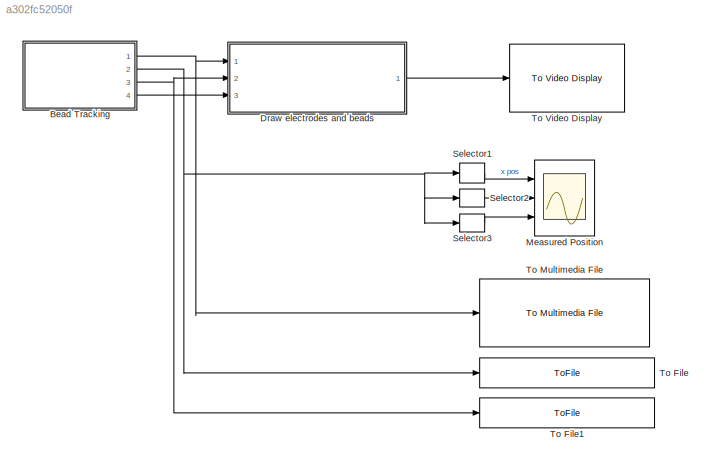
MODEL slx_a302fc52050f
KIND model
CONFIG AbsTol = auto
CONFIG FixedStep = 1/100
CONFIG InitFcn = load('calibParams.mat')
CONFIG MaxStep = auto
CONFIG MinStep = auto
CONFIG RelTol = 1e-3
CONFIG SampleTimeConstraint = Unconstrained
CONFIG Solver = FixedStepDiscrete
CONFIG SolverMode = Auto
CONFIG SolverName = FixedStepDiscrete
CONFIG StartTime = 0.0
CONFIG StopTime = inf
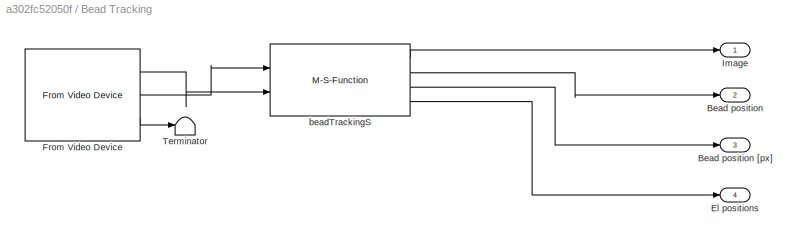
BLOCK [SubSystem] Bead Tracking
  Ports = [0, 4]
  RequestExecContextInheritance = off
  Variant = off
BLOCK [Outport] Bead Tracking/Bead position
  IconDisplay = Port number
  Port = 2
BLOCK [Outport] Bead Tracking/Bead position [px]
  IconDisplay = Port number
  Port = 3
BLOCK [Outport] Bead Tracking/El positions
  IconDisplay = Port number
  Port = 4
BLOCK [Reference] Bead Tracking/From Video Device  REF=imaqlib/From Video Device
  Ports = [0, 3]
  SourceBlock = imaqlib/From Video Device
  SourceType = From Video Device
  UserDataPersistent = on
BLOCK [Outport] Bead Tracking/Image
  IconDisplay = Port number
BLOCK [Terminator] Bead Tracking/Terminator
BLOCK [M-S-Function] Bead Tracking/beadTrackingS
  FunctionName = beadTracking
  Parameters = beadSize,maxTrackedBeads,y_offset,markBeads,calibParamsFile
  Ports = [2, 4]
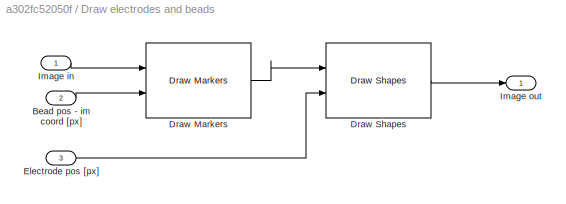
BLOCK [SubSystem] Draw electrodes and beads
  Ports = [3, 1]
  RequestExecContextInheritance = off
  Variant = off
BLOCK [Inport] Draw electrodes and beads/Bead pos - im coord [px]
  IconDisplay = Port number
  Port = 2
BLOCK [Reference] Draw electrodes and beads/Draw Markers  REF=visiontextngfix/Draw Markers
  Ports = [2, 1]
  SourceBlock = visiontextngfix/Draw Markers
  SourceType = Draw Markers
BLOCK [Reference] Draw electrodes and beads/Draw Shapes  REF=visiontextngfix/Draw Shapes
  Ports = [2, 1]
  SourceBlock = visiontextngfix/Draw Shapes
  SourceType = Draw Shapes
BLOCK [Inport] Draw electrodes and beads/Electrode pos [px]
  IconDisplay = Port number
  Port = 3
BLOCK [Inport] Draw electrodes and beads/Image in
  IconDisplay = Port number
BLOCK [Outport] Draw electrodes and beads/Image out
  IconDisplay = Port number
BLOCK [Scope] Measured Position
  NumInputPorts = 3
  Ports = [3]
  ScopeSpecificationString = Simulink.scopes.TimeScopeBlockCfg('CurrentConfiguration', extmgr.ConfigurationSet(extmgr.Configuration('Core','General UI',true),extmgr.Configuration('Core','Source UI',true),extmgr.Configuration('Sources','WiredSimulink',true,'DataLoggingSaveFormat','StructureWithTime','DataLoggingDecimation','1','DataLoggingDecimateData',true),extmgr.Configuration('Visuals','Time Domain',true,'SerializedDisplays...<+3201ch>
BLOCK [Selector] Selector1
  IndexMode = Zero-based
  IndexOptions = Select all,Index vector (dialog)
  Indices = [1 3],0
  InputPortWidth = 3
  NumberOfDimensions = 2
  OutputSizes = 1,1
  Ports = [1, 1]
BLOCK [Selector] Selector2
  IndexMode = Zero-based
  IndexOptions = Select all,Index vector (dialog)
  Indices = [1 3],0
  InputPortWidth = 3
  NumberOfDimensions = 2
  OutputSizes = 1,1
  Ports = [1, 1]
BLOCK [Selector] Selector3
  IndexMode = Zero-based
  IndexOptions = Select all,Index vector (dialog)
  Indices = [1 3],0
  InputPortWidth = 3
  NumberOfDimensions = 2
  OutputSizes = 1,1
  Ports = [1, 1]
BLOCK [ToFile] To File
  Filename = ./expData/beadPosTS.mat
  MatrixName = beadPos
  Ports = [1]
  SaveFormat = Timeseries
BLOCK [ToFile] To File1
  Filename = ./expData/beadPosTSpx.mat
  MatrixName = beadPos
  Ports = [1]
  SaveFormat = Timeseries
BLOCK [Reference] To Multimedia File  REF=dspvision/To Multimedia File
  Ports = [1]
  SourceBlock = dspvision/To Multimedia File
  SourceType = To Multimedia File
BLOCK [Reference] To Video Display  REF=visionsinks/To Video Display
  Ports = [1]
  SourceBlock = visionsinks/To Video Display
  SourceType = To Video Display
LINE Bead Tracking/From Video Device:1 -> Bead Tracking/beadTrackingS:2
LINE Bead Tracking/From Video Device:2 -> Bead Tracking/beadTrackingS:1
LINE Bead Tracking/From Video Device:3 -> Bead Tracking/Terminator:1
LINE Bead Tracking/beadTrackingS:1 -> Bead Tracking/Image:1
LINE Bead Tracking/beadTrackingS:2 -> Bead Tracking/Bead position:1
LINE Bead Tracking/beadTrackingS:3 -> Bead Tracking/Bead position [px]:1
LINE Bead Tracking/beadTrackingS:4 -> Bead Tracking/El positions:1
NET Bead Tracking:1 -> Draw electrodes and beads:1, To Multimedia File:1
NET Bead Tracking:2 -> Selector1:1, Selector2:1, Selector3:1, To File:1
NET Bead Tracking:3 -> Draw electrodes and beads:2, To File1:1
LINE Bead Tracking:4 -> Draw electrodes and beads:3
LINE Draw electrodes and beads/Bead pos - im coord [px]:1 -> Draw electrodes and beads/Draw Markers:2
LINE Draw electrodes and beads/Draw Markers:1 -> Draw electrodes and beads/Draw Shapes:1
LINE Draw electrodes and beads/Draw Shapes:1 -> Draw electrodes and beads/Image out:1
LINE Draw electrodes and beads/Electrode pos [px]:1 -> Draw electrodes and beads/Draw Shapes:2
LINE Draw electrodes and beads/Image in:1 -> Draw electrodes and beads/Draw Markers:1
LINE Draw electrodes and beads:1 -> To Video Display:1
LINE Selector1:1 -> Measured Position:1
LINE Selector2:1 -> Measured Position:2
LINE Selector3:1 -> Measured Position:3
note: NET lines group one-source signal fan-out (src -> all destinations, sorted); 1:1 wires keep LINE
